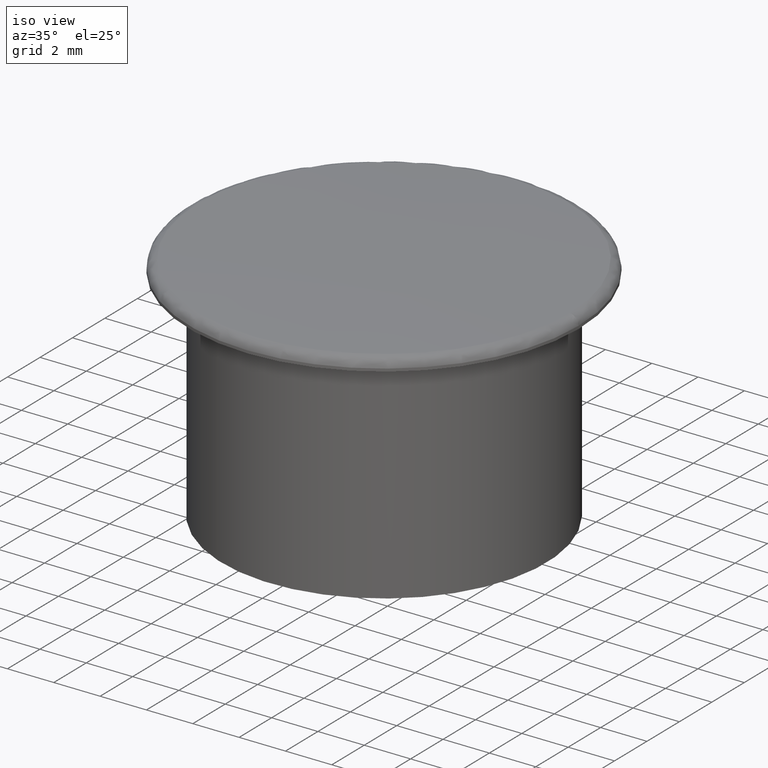
[diagram: clean part render]
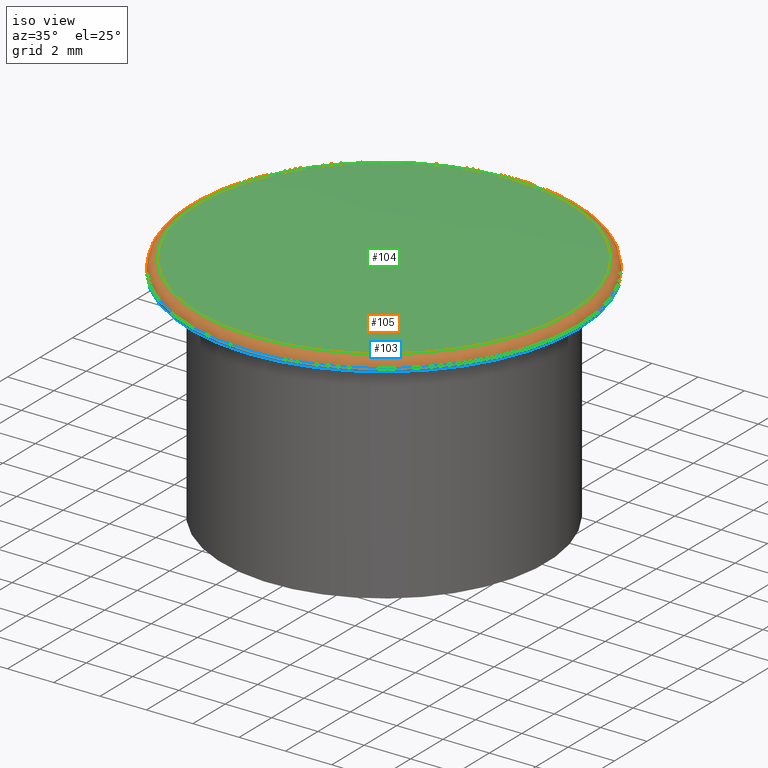
[diagram: same view with three faces highlighted in distinct colors, each labeled with its STEP entity id]
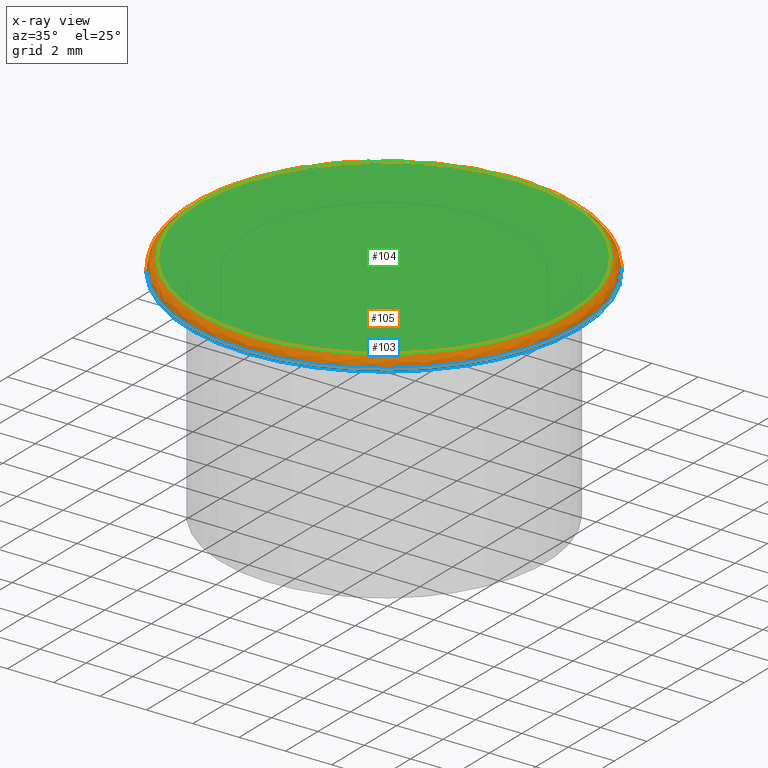
[diagram: x-ray of the same camera — body ghosted, the three highlighted faces saturated]
A machine part, iso view with three faces highlighted in distinct colors.
The next image is the same camera in x-ray (body ghosted, the three faces saturated) — at least one of them is partly hidden behind the body in this view.
Their STEP definitions:

[orange] entity #105 — the highlighted face is a freeform B-spline surface patch.
#15=B_SPLINE_SURFACE_WITH_KNOTS('',3,3,((#187,#188,#189,#190,#191,#192,
#193,#194,#195,#196,#197,#198,#199,#200,#201,#202,#203,#204,#205,#206,#207,
#208,#209,#210,#211,#212,#213,#214,#215,#216,#217,#218,#219),(#220,#221,
#222,#223,#224,#225,#226,#227,#228,#229,#230,#231,#232,#233,#234,#235,#236,
#237,#238,#239,#240,#241,#242,#243,#244,#245,#246,#247,#248,#249,#250,#251,
#252),(#253,#254,#255,#256,#257,#258,#259,#260,#261,#262,#263,#264,#265,
#266,#267,#268,#269,#270,#271,#272,#273,#274,#275,#276,#277,#278,#279,#280,
#281,#282,#283,#284,#285),(#286,#287,#288,#289,#290,#291,#292,#293,#294,
#295,#296,#297,#298,#299,#300,#301,#302,#303,#304,#305,#306,#307,#308,#309,
#310,#311,#312,#313,#314,#315,#316,#317,#318),(#319,#320,#321,#322,#323,
#324,#325,#326,#327,#328,#329,#330,#331,#332,#333,#334,#335,#336,#337,#338,
#339,#340,#341,#342,#343,#344,#345,#346,#347,#348,#349,#350,#351),(#352,
#353,#354,#355,#356,#357,#358,#359,#360,#361,#362,#363,#364,#365,#366,#367,
#368,#369,#370,#371,#372,#373,#374,#375,#376,#377,#378,#379,#380,#381,#382,
#383,#384),(#385,#386,#387,#388,#389,#390,#391,#392,#393,#394,#395,#396,
#397,#398,#399,#400,#401,#402,#403,#404,#405,#406,#407,#408,#409,#410,#411,
#412,#413,#414,#415,#416,#417)),.UNSPECIFIED.,.F.,.T.,.F.,(4,1,1,1,4),(4,
1,1,1,1,1,1,1,1,1,1,1,1,1,1,1,1,1,1,1,1,1,1,1,1,1,1,1,1,1,4),(-0.0192438729312077,
0.150806206425929,0.301612412851857,0.452418619277786,0.603224825703715),
(0.,1.6173286749895,3.234657349979,4.85198602496849,6.46931469995799,8.08664337494749,
9.70397204993699,11.3213007249265,12.938629399916,14.5559580749055,16.173286749895,
17.7906154248845,19.407944099874,21.0252727748635,22.642601449853,25.86168304057,
29.0807646312871,30.6980933062766,32.3154219812661,33.9327506562556,35.5500793312451,
37.1674080062346,38.7847366812241,40.4020653562136,42.0193940312031,43.6367227061926,
45.2540513811821,46.8713800561716,48.4887087311611,50.1060374061506,51.7233660811401),
 .UNSPECIFIED.);
#32=FACE_OUTER_BOUND('',#45,.T.);
#45=EDGE_LOOP('',(#89,#90,#91,#92,#93,#94));
#51=CIRCLE('',#119,8.4);
#52=CIRCLE('',#120,8.4);
#53=CIRCLE('',#122,8.0214524271729);
#54=CIRCLE('',#123,8.0214524271729);
#55=CIRCLE('',#124,0.400000005960465);
#61=VERTEX_POINT('',#178);
#62=VERTEX_POINT('',#179);
#63=VERTEX_POINT('',#183);
#64=VERTEX_POINT('',#184);
#70=EDGE_CURVE('',#61,#62,#51,.T.);
#71=EDGE_CURVE('',#62,#61,#52,.T.);
#72=EDGE_CURVE('',#63,#64,#53,.T.);
#73=EDGE_CURVE('',#64,#63,#54,.T.);
#74=EDGE_CURVE('',#64,#61,#55,.T.);
#89=ORIENTED_EDGE('',*,*,#74,.T.);
#90=ORIENTED_EDGE('',*,*,#71,.F.);
#91=ORIENTED_EDGE('',*,*,#70,.F.);
#92=ORIENTED_EDGE('',*,*,#74,.F.);
#93=ORIENTED_EDGE('',*,*,#73,.T.);
#94=ORIENTED_EDGE('',*,*,#72,.T.);
#105=ADVANCED_FACE('',(#32),#15,.F.);
#119=AXIS2_PLACEMENT_3D('',#180,#149,#150);
#120=AXIS2_PLACEMENT_3D('',#181,#151,#152);
#122=AXIS2_PLACEMENT_3D('',#185,#155,#156);
#123=AXIS2_PLACEMENT_3D('',#186,#157,#158);
#124=AXIS2_PLACEMENT_3D('',#418,#159,#160);
#149=DIRECTION('center_axis',(0.,0.,-1.));
#150=DIRECTION('ref_axis',(1.,0.,0.));
#151=DIRECTION('center_axis',(0.,0.,-1.));
#152=DIRECTION('ref_axis',(1.,0.,0.));
#155=DIRECTION('center_axis',(0.,0.,-1.));
#156=DIRECTION('ref_axis',(1.,0.,0.));
#157=DIRECTION('center_axis',(0.,0.,-1.));
#158=DIRECTION('ref_axis',(1.,0.,0.));
#159=DIRECTION('center_axis',(0.,1.,0.));
#160=DIRECTION('ref_axis',(0.05363108203424,0.,0.998560817897356));
#178=CARTESIAN_POINT('',(8.4,9.5,0.121388026605558));
#179=CARTESIAN_POINT('',(-8.4,9.5,0.121388026605558));
#180=CARTESIAN_POINT('Origin',(0.,9.5,0.121388026605558));
#181=CARTESIAN_POINT('Origin',(0.,9.5,0.121388026605558));
#183=CARTESIAN_POINT('',(-8.0214524271729,9.5,0.520812359716416));
#184=CARTESIAN_POINT('',(8.0214524271729,9.5,0.520812359716416));
#185=CARTESIAN_POINT('Origin',(0.,9.5,0.520812359716416));
#186=CARTESIAN_POINT('Origin',(0.,9.5,0.520812359716416));
#187=CARTESIAN_POINT('Ctrl Pts',(8.00224461927941,9.5,0.521368012232897));
#188=CARTESIAN_POINT('Ctrl Pts',(8.00224461927941,8.97709524413375,0.521368012232897));
#189=CARTESIAN_POINT('Ctrl Pts',(7.89907657996045,7.92838771696934,0.521368012232897));
#190=CARTESIAN_POINT('Ctrl Pts',(7.44076743787049,6.4180372466444,0.521368012232897));
#191=CARTESIAN_POINT('Ctrl Pts',(6.69651377596251,5.02550467126759,0.521368012232897));
#192=CARTESIAN_POINT('Ctrl Pts',(5.69491684513374,3.80509062140778,0.521368012232897));
#193=CARTESIAN_POINT('Ctrl Pts',(4.47446745353869,2.80348423306514,0.521368012232896));
#194=CARTESIAN_POINT('Ctrl Pts',(3.08206678758901,2.05923305947742,0.521368012232897));
#195=CARTESIAN_POINT('Ctrl Pts',(1.57122402129077,1.60092342162028,0.521368012232896));
#196=CARTESIAN_POINT('Ctrl Pts',(5.01020095738367E-9,1.4461708573903,0.521368012232897));
#197=CARTESIAN_POINT('Ctrl Pts',(-1.57122404133157,1.60092543314209,0.521368012232896));
#198=CARTESIAN_POINT('Ctrl Pts',(-3.08206671744624,2.05922501339021,0.521368012232897));
#199=CARTESIAN_POINT('Ctrl Pts',(-4.47446771406896,2.8035144058922,0.521368012232896));
#200=CARTESIAN_POINT('Ctrl Pts',(-5.69491587315541,3.80497797618675,0.521368012232897));
#201=CARTESIAN_POINT('Ctrl Pts',(-6.6965174033456,5.02592507932465,0.521368012232897));
#202=CARTESIAN_POINT('Ctrl Pts',(-7.68644359787111,6.87551875608313,0.521368012232897));
#203=CARTESIAN_POINT('Ctrl Pts',(-8.21243961897854,9.5,0.521368012232897));
#204=CARTESIAN_POINT('Ctrl Pts',(-7.68644359787112,12.1244812439169,0.521368012232897));
#205=CARTESIAN_POINT('Ctrl Pts',(-6.69651740334559,13.9740749206753,0.521368012232897));
#206=CARTESIAN_POINT('Ctrl Pts',(-5.69491587315541,15.1950220238133,0.521368012232897));
#207=CARTESIAN_POINT('Ctrl Pts',(-4.47446771406897,16.1964855941078,0.521368012232897));
#208=CARTESIAN_POINT('Ctrl Pts',(-3.08206671744625,16.9407749866098,0.521368012232895));
#209=CARTESIAN_POINT('Ctrl Pts',(-1.57122404133156,17.3990745668579,0.521368012232895));
#210=CARTESIAN_POINT('Ctrl Pts',(5.01019498336725E-9,17.5538291426097,0.521368012232897));
#211=CARTESIAN_POINT('Ctrl Pts',(1.57122402129077,17.3990765783797,0.521368012232897));
#212=CARTESIAN_POINT('Ctrl Pts',(3.08206678758901,16.9407669405226,0.521368012232896));
#213=CARTESIAN_POINT('Ctrl Pts',(4.47446745353868,16.1965157669349,0.521368012232897));
#214=CARTESIAN_POINT('Ctrl Pts',(5.69491684513375,15.1949093785922,0.521368012232897));
#215=CARTESIAN_POINT('Ctrl Pts',(6.6965137759625,13.9744953287324,0.521368012232897));
#216=CARTESIAN_POINT('Ctrl Pts',(7.44076743787048,12.5819627533556,0.521368012232897));
#217=CARTESIAN_POINT('Ctrl Pts',(7.89907657996044,11.0716122830307,0.521368012232897));
#218=CARTESIAN_POINT('Ctrl Pts',(8.00224461927941,10.0229047558663,0.521368012232897));
#219=CARTESIAN_POINT('Ctrl Pts',(8.00224461927941,9.50000000000001,0.521368012232897));
#220=CARTESIAN_POINT('Ctrl Pts',(8.05877137625513,9.5,0.521140134537199));
#221=CARTESIAN_POINT('Ctrl Pts',(8.05877137625513,8.97340151675317,0.521140134537199));
#222=CARTESIAN_POINT('Ctrl Pts',(7.95487457207535,7.91728606364461,0.521140134537199));
#223=CARTESIAN_POINT('Ctrl Pts',(7.49332799714907,6.39626668502629,0.521140134537199));
#224=CARTESIAN_POINT('Ctrl Pts',(6.74381702958793,4.9938974507851,0.521140134537199));
#225=CARTESIAN_POINT('Ctrl Pts',(5.73514495559744,3.76486256368671,0.521140134537199));
#226=CARTESIAN_POINT('Ctrl Pts',(4.50607447711463,2.75618096537576,0.5211401345372));
#227=CARTESIAN_POINT('Ctrl Pts',(3.10383808409065,2.00667250371203,0.521140134537199));
#228=CARTESIAN_POINT('Ctrl Pts',(1.5823229319879,1.54512542951654,0.5211401345372));
#229=CARTESIAN_POINT('Ctrl Pts',(5.04559251821049E-9,1.3892797144263,0.5211401345372));
#230=CARTESIAN_POINT('Ctrl Pts',(-1.58232295217025,1.54512745524746,0.5211401345372));
#231=CARTESIAN_POINT('Ctrl Pts',(-3.1038380134524,2.00666440078836,0.521140134537199));
#232=CARTESIAN_POINT('Ctrl Pts',(-4.50607473948525,2.75621135133952,0.5211401345372));
#233=CARTESIAN_POINT('Ctrl Pts',(-5.73514397675318,3.76474912275531,0.521140134537199));
#234=CARTESIAN_POINT('Ctrl Pts',(-6.74382068259436,4.99432082854694,0.521140134537199));
#235=CARTESIAN_POINT('Ctrl Pts',(-7.7407395798032,6.85697978101796,0.521140134537199));
#236=CARTESIAN_POINT('Ctrl Pts',(-8.27045116456431,9.5,0.521140134537199));
#237=CARTESIAN_POINT('Ctrl Pts',(-7.7407395798032,12.143020218982,0.521140134537199));
#238=CARTESIAN_POINT('Ctrl Pts',(-6.74382068259435,14.005679171453,0.521140134537199));
#239=CARTESIAN_POINT('Ctrl Pts',(-5.73514397675318,15.2352508772447,0.521140134537199));
#240=CARTESIAN_POINT('Ctrl Pts',(-4.50607473948525,16.2437886486605,0.521140134537198));
#241=CARTESIAN_POINT('Ctrl Pts',(-3.10383801345241,16.9933355992116,0.521140134537199));
#242=CARTESIAN_POINT('Ctrl Pts',(-1.58232295217025,17.4548725447525,0.521140134537199));
#243=CARTESIAN_POINT('Ctrl Pts',(5.04558638653299E-9,17.6107202855737,0.521140134537199));
#244=CARTESIAN_POINT('Ctrl Pts',(1.5823229319879,17.4548745704835,0.521140134537199));
#245=CARTESIAN_POINT('Ctrl Pts',(3.10383808409065,16.993327496288,0.521140134537198));
#246=CARTESIAN_POINT('Ctrl Pts',(4.50607447711462,16.2438190346242,0.521140134537199));
#247=CARTESIAN_POINT('Ctrl Pts',(5.73514495559744,15.2351374363133,0.521140134537199));
#248=CARTESIAN_POINT('Ctrl Pts',(6.74381702958792,14.0061025492149,0.521140134537199));
#249=CARTESIAN_POINT('Ctrl Pts',(7.49332799714908,12.6037333149737,0.521140134537199));
#250=CARTESIAN_POINT('Ctrl Pts',(7.95487457207535,11.0827139363554,0.521140134537199));
#251=CARTESIAN_POINT('Ctrl Pts',(8.05877137625513,10.0265984832468,0.521140134537199));
#252=CARTESIAN_POINT('Ctrl Pts',(8.05877137625513,9.5,0.521140134537199));
#253=CARTESIAN_POINT('Ctrl Pts',(8.16669667586103,9.5,0.497128904439829));
#254=CARTESIAN_POINT('Ctrl Pts',(8.16669667586103,8.96634916392878,0.497128904439829));
#255=CARTESIAN_POINT('Ctrl Pts',(8.06140845688665,7.8960899199899,0.497128904439829));
#256=CARTESIAN_POINT('Ctrl Pts',(7.59368072232011,6.35470062833156,0.497128904439828));
#257=CARTESIAN_POINT('Ctrl Pts',(6.83413209616869,4.93355047666547,0.497128904439829));
#258=CARTESIAN_POINT('Ctrl Pts',(5.81195160622905,3.68805601375543,0.497128904439829));
#259=CARTESIAN_POINT('Ctrl Pts',(4.56642107528492,2.665865871943,0.497128904439829));
#260=CARTESIAN_POINT('Ctrl Pts',(3.14540554388243,1.90631978524866,0.497128904439829));
#261=CARTESIAN_POINT('Ctrl Pts',(1.60351383920376,1.43859154472656,0.497128904439829));
#262=CARTESIAN_POINT('Ctrl Pts',(5.11316383121349E-9,1.28065870063016,0.497128904439829));
#263=CARTESIAN_POINT('Ctrl Pts',(-1.60351385965641,1.43859359758663,0.497128904439829));
#264=CARTESIAN_POINT('Ctrl Pts',(-3.14540547229818,1.90631157380839,0.497128904439829));
#265=CARTESIAN_POINT('Ctrl Pts',(-4.56642134116928,2.66589666484401,0.497128904439829));
#266=CARTESIAN_POINT('Ctrl Pts',(-5.81195061427584,3.68794105359164,0.497128904439829));
#267=CARTESIAN_POINT('Ctrl Pts',(-6.8341357980972,4.93397952441963,0.497128904439829));
#268=CARTESIAN_POINT('Ctrl Pts',(-7.84440570945455,6.82158372178261,0.497128904439829));
#269=CARTESIAN_POINT('Ctrl Pts',(-8.38121133855827,9.50000000000001,0.497128904439829));
#270=CARTESIAN_POINT('Ctrl Pts',(-7.84440570945455,12.1784162782174,0.497128904439828));
#271=CARTESIAN_POINT('Ctrl Pts',(-6.83413579809719,14.0660204755804,0.497128904439829));
#272=CARTESIAN_POINT('Ctrl Pts',(-5.81195061427584,15.3120589464084,0.497128904439829));
#273=CARTESIAN_POINT('Ctrl Pts',(-4.56642134116928,16.334103335156,0.497128904439827));
#274=CARTESIAN_POINT('Ctrl Pts',(-3.14540547229819,17.0936884261916,0.497128904439829));
#275=CARTESIAN_POINT('Ctrl Pts',(-1.6035138596564,17.5614064024134,0.497128904439828));
#276=CARTESIAN_POINT('Ctrl Pts',(5.11315883121349E-9,17.7193412993698,0.497128904439829));
#277=CARTESIAN_POINT('Ctrl Pts',(1.60351383920376,17.5614084552734,0.497128904439828));
#278=CARTESIAN_POINT('Ctrl Pts',(3.14540554388243,17.0936802147513,0.497128904439827));
#279=CARTESIAN_POINT('Ctrl Pts',(4.56642107528491,16.334134128057,0.497128904439829));
#280=CARTESIAN_POINT('Ctrl Pts',(5.81195160622905,15.3119439862446,0.497128904439829));
#281=CARTESIAN_POINT('Ctrl Pts',(6.83413209616869,14.0664495233345,0.497128904439828));
#282=CARTESIAN_POINT('Ctrl Pts',(7.59368072232012,12.6452993716684,0.497128904439828));
#283=CARTESIAN_POINT('Ctrl Pts',(8.06140845688665,11.1039100800101,0.497128904439828));
#284=CARTESIAN_POINT('Ctrl Pts',(8.16669667586103,10.0336508360712,0.497128904439829));
#285=CARTESIAN_POINT('Ctrl Pts',(8.16669667586103,9.50000000000001,0.497128904439829));
#286=CARTESIAN_POINT('Ctrl Pts',(8.29733600956711,9.5,0.403183144382767));
#287=CARTESIAN_POINT('Ctrl Pts',(8.29733600956711,8.95781256799249,0.403183144382767));
#288=CARTESIAN_POINT('Ctrl Pts',(8.19036353766651,7.87043282110482,0.403183144382767));
#289=CARTESIAN_POINT('Ctrl Pts',(7.71515375227516,6.30438655024959,0.403183144382767));
#290=CARTESIAN_POINT('Ctrl Pts',(6.94345493488042,4.86050283613118,0.403183144382768));
#291=CARTESIAN_POINT('Ctrl Pts',(5.90492303831542,3.59508470356286,0.403183144382767));
#292=CARTESIAN_POINT('Ctrl Pts',(4.63946826074729,2.55654300072797,0.403183144382768));
#293=CARTESIAN_POINT('Ctrl Pts',(3.19572132035823,1.78484676341299,0.403183144382767));
#294=CARTESIAN_POINT('Ctrl Pts',(1.6291645995854,1.30963646397251,0.403183144382768));
#295=CARTESIAN_POINT('Ctrl Pts',(5.194957E-9,1.14917723223837,0.403183144382768));
#296=CARTESIAN_POINT('Ctrl Pts',(-1.62916462036522,1.30963854967135,0.403183144382768));
#297=CARTESIAN_POINT('Ctrl Pts',(-3.19572124762887,1.78483842061764,0.403183144382767));
#298=CARTESIAN_POINT('Ctrl Pts',(-4.6394685308849,2.55657428621052,0.403183144382768));
#299=CARTESIAN_POINT('Ctrl Pts',(-5.90492203049433,3.59496790442797,0.403183144382767));
#300=CARTESIAN_POINT('Ctrl Pts',(-6.94345869602718,4.86093874718821,0.403183144382768));
#301=CARTESIAN_POINT('Ctrl Pts',(-7.96988948531614,6.77873818314418,0.403183144382767));
#302=CARTESIAN_POINT('Ctrl Pts',(-8.51528217630046,9.5,0.403183144382768));
#303=CARTESIAN_POINT('Ctrl Pts',(-7.96988948531614,12.2212618168558,0.403183144382766));
#304=CARTESIAN_POINT('Ctrl Pts',(-6.94345869602718,14.1390612528118,0.403183144382767));
#305=CARTESIAN_POINT('Ctrl Pts',(-5.90492203049433,15.405032095572,0.403183144382767));
#306=CARTESIAN_POINT('Ctrl Pts',(-4.63946853088491,16.4434257137895,0.403183144382765));
#307=CARTESIAN_POINT('Ctrl Pts',(-3.19572124762887,17.2151615793823,0.403183144382768));
#308=CARTESIAN_POINT('Ctrl Pts',(-1.62916462036522,17.6903614503286,0.403183144382766));
#309=CARTESIAN_POINT('Ctrl Pts',(5.194952E-9,17.8508227677616,0.403183144382767));
#310=CARTESIAN_POINT('Ctrl Pts',(1.6291645995854,17.6903635360275,0.403183144382767));
#311=CARTESIAN_POINT('Ctrl Pts',(3.19572132035823,17.215153236587,0.403183144382765));
#312=CARTESIAN_POINT('Ctrl Pts',(4.63946826074729,16.443456999272,0.403183144382768));
#313=CARTESIAN_POINT('Ctrl Pts',(5.90492303831542,15.4049152964371,0.403183144382767));
#314=CARTESIAN_POINT('Ctrl Pts',(6.94345493488042,14.1394971638688,0.403183144382766));
#315=CARTESIAN_POINT('Ctrl Pts',(7.71515375227515,12.6956134497504,0.403183144382767));
#316=CARTESIAN_POINT('Ctrl Pts',(8.19036353766651,11.1295671788952,0.403183144382767));
#317=CARTESIAN_POINT('Ctrl Pts',(8.29733600956711,10.0421874320075,0.403183144382767));
#318=CARTESIAN_POINT('Ctrl Pts',(8.29733600956711,9.5,0.403183144382767));
#319=CARTESIAN_POINT('Ctrl Pts',(8.38059861535722,9.5,0.273221405220312));
#320=CARTESIAN_POINT('Ctrl Pts',(8.38059861535722,8.95237179298187,0.273221405220312));
#321=CARTESIAN_POINT('Ctrl Pts',(8.27255268967,7.85408034249381,0.273221405220313));
#322=CARTESIAN_POINT('Ctrl Pts',(7.79257424057948,6.27231901645112,0.273221405220312));
#323=CARTESIAN_POINT('Ctrl Pts',(7.01313153353784,4.81394613130759,0.273221405220313));
#324=CARTESIAN_POINT('Ctrl Pts',(5.96417811471504,3.53582970485192,0.273221405220312));
#325=CARTESIAN_POINT('Ctrl Pts',(4.6860246755321,2.48686638135467,0.273221405220313));
#326=CARTESIAN_POINT('Ctrl Pts',(3.22778993662316,1.70742628028352,0.273221405220313));
#327=CARTESIAN_POINT('Ctrl Pts',(1.64551303836938,1.22744731198546,0.273221405220313));
#328=CARTESIAN_POINT('Ctrl Pts',(5.247088E-9,1.06537789431431,0.273221405220313));
#329=CARTESIAN_POINT('Ctrl Pts',(-1.64551305935772,1.227449418614,0.273221405220313));
#330=CARTESIAN_POINT('Ctrl Pts',(-3.22778986316397,1.70741785376939,0.273221405220313));
#331=CARTESIAN_POINT('Ctrl Pts',(-4.6860249483805,2.48689798078267,0.273221405220313));
#332=CARTESIAN_POINT('Ctrl Pts',(-5.9641770967806,3.53571173365404,0.273221405220312));
#333=CARTESIAN_POINT('Ctrl Pts',(-7.01313533242718,4.81438641667108,0.273221405220313));
#334=CARTESIAN_POINT('Ctrl Pts',(-8.04986621105576,6.75143070160466,0.273221405220312));
#335=CARTESIAN_POINT('Ctrl Pts',(-8.60073184137602,9.5,0.273221405220312));
#336=CARTESIAN_POINT('Ctrl Pts',(-8.04986621105577,12.2485692983953,0.273221405220312));
#337=CARTESIAN_POINT('Ctrl Pts',(-7.01313533242717,14.1856135833289,0.273221405220312));
#338=CARTESIAN_POINT('Ctrl Pts',(-5.96417709678061,15.464288266346,0.273221405220312));
#339=CARTESIAN_POINT('Ctrl Pts',(-4.68602494838051,16.5131020192173,0.273221405220311));
#340=CARTESIAN_POINT('Ctrl Pts',(-3.22778986316398,17.2925821462306,0.273221405220313));
#341=CARTESIAN_POINT('Ctrl Pts',(-1.64551305935772,17.772550581386,0.273221405220311));
#342=CARTESIAN_POINT('Ctrl Pts',(5.247082E-9,17.9346221056857,0.273221405220312));
#343=CARTESIAN_POINT('Ctrl Pts',(1.64551303836938,17.7725526880145,0.273221405220312));
#344=CARTESIAN_POINT('Ctrl Pts',(3.22778993662316,17.2925737197165,0.273221405220311));
#345=CARTESIAN_POINT('Ctrl Pts',(4.6860246755321,16.5131336186453,0.273221405220313));
#346=CARTESIAN_POINT('Ctrl Pts',(5.96417811471503,15.4641702951481,0.273221405220312));
#347=CARTESIAN_POINT('Ctrl Pts',(7.01313153353784,14.1860538686924,0.273221405220311));
#348=CARTESIAN_POINT('Ctrl Pts',(7.79257424057949,12.7276809835489,0.273221405220312));
#349=CARTESIAN_POINT('Ctrl Pts',(8.27255268967,11.1459196575062,0.273221405220312));
#350=CARTESIAN_POINT('Ctrl Pts',(8.38059861535722,10.0476282070181,0.273221405220312));
#351=CARTESIAN_POINT('Ctrl Pts',(8.38059861535722,9.5,0.273221405220312));
#352=CARTESIAN_POINT('Ctrl Pts',(8.4,9.5,0.171656762080868));
#353=CARTESIAN_POINT('Ctrl Pts',(8.4,8.95110401415446,0.171656762080868));
#354=CARTESIAN_POINT('Ctrl Pts',(8.29170394414196,7.85026997979395,0.171656762080868));
#355=CARTESIAN_POINT('Ctrl Pts',(7.81061432782598,6.26484681987661,0.171656762080868));
#356=CARTESIAN_POINT('Ctrl Pts',(7.02936718312297,4.80309774949908,0.171656762080868));
#357=CARTESIAN_POINT('Ctrl Pts',(5.9779853997304,3.52202243793912,0.171656762080868));
#358=CARTESIAN_POINT('Ctrl Pts',(4.69687298975741,2.47063072694244,0.171656762080868));
#359=CARTESIAN_POINT('Ctrl Pts',(3.23526238542793,1.68938619424284,0.171656762080868));
#360=CARTESIAN_POINT('Ctrl Pts',(1.64932245973143,1.20829605751734,0.171656762080868));
#361=CARTESIAN_POINT('Ctrl Pts',(5.259235E-9,1.04585144336496,0.171656762080868));
#362=CARTESIAN_POINT('Ctrl Pts',(-1.64932248076836,1.2082981690228,0.171656762080868));
#363=CARTESIAN_POINT('Ctrl Pts',(-3.23526231179868,1.68937774822103,0.171656762080868));
#364=CARTESIAN_POINT('Ctrl Pts',(-4.69687326323746,2.47066239952424,0.171656762080868));
#365=CARTESIAN_POINT('Ctrl Pts',(-5.97798437943942,3.52190419363372,0.171656762080868));
#366=CARTESIAN_POINT('Ctrl Pts',(-7.02937099080687,4.80353905413888,0.171656762080868));
#367=CARTESIAN_POINT('Ctrl Pts',(-8.06850193838882,6.74506766566617,0.171656762080868));
#368=CARTESIAN_POINT('Ctrl Pts',(-8.62064284228689,9.5,0.171656762080868));
#369=CARTESIAN_POINT('Ctrl Pts',(-8.06850193838882,12.2549323343338,0.171656762080867));
#370=CARTESIAN_POINT('Ctrl Pts',(-7.02937099080687,14.1964609458611,0.171656762080868));
#371=CARTESIAN_POINT('Ctrl Pts',(-5.97798437943942,15.4780958063663,0.171656762080867));
#372=CARTESIAN_POINT('Ctrl Pts',(-4.69687326323747,16.5293376004758,0.171656762080867));
#373=CARTESIAN_POINT('Ctrl Pts',(-3.23526231179868,17.310622251779,0.171656762080868));
#374=CARTESIAN_POINT('Ctrl Pts',(-1.64932248076835,17.7917018309772,0.171656762080867));
#375=CARTESIAN_POINT('Ctrl Pts',(5.25923E-9,17.954148556635,0.171656762080867));
#376=CARTESIAN_POINT('Ctrl Pts',(1.64932245973143,17.7917039424827,0.171656762080867));
#377=CARTESIAN_POINT('Ctrl Pts',(3.23526238542792,17.3106138057572,0.171656762080867));
#378=CARTESIAN_POINT('Ctrl Pts',(4.6968729897574,16.5293692730576,0.171656762080868));
#379=CARTESIAN_POINT('Ctrl Pts',(5.97798539973041,15.4779775620609,0.171656762080867));
#380=CARTESIAN_POINT('Ctrl Pts',(7.02936718312297,14.1969022505009,0.171656762080867));
#381=CARTESIAN_POINT('Ctrl Pts',(7.81061432782599,12.7351531801234,0.171656762080868));
#382=CARTESIAN_POINT('Ctrl Pts',(8.29170394414195,11.1497300202061,0.171656762080868));
#383=CARTESIAN_POINT('Ctrl Pts',(8.4,10.0488959858455,0.171656762080868));
#384=CARTESIAN_POINT('Ctrl Pts',(8.4,9.5,0.171656762080868));
#385=CARTESIAN_POINT('Ctrl Pts',(8.4,9.5,0.121388026605558));
#386=CARTESIAN_POINT('Ctrl Pts',(8.4,8.95110401415446,0.121388026605558));
#387=CARTESIAN_POINT('Ctrl Pts',(8.29170394414195,7.85026997979395,0.121388026605558));
#388=CARTESIAN_POINT('Ctrl Pts',(7.81061432782598,6.26484681987661,0.121388026605558));
#389=CARTESIAN_POINT('Ctrl Pts',(7.02936718312297,4.80309774949908,0.121388026605559));
#390=CARTESIAN_POINT('Ctrl Pts',(5.9779853997304,3.52202243793912,0.121388026605559));
#391=CARTESIAN_POINT('Ctrl Pts',(4.69687298975741,2.47063072694244,0.121388026605559));
#392=CARTESIAN_POINT('Ctrl Pts',(3.23526238542792,1.68938619424284,0.121388026605559));
#393=CARTESIAN_POINT('Ctrl Pts',(1.64932245973143,1.20829605751735,0.121388026605559));
#394=CARTESIAN_POINT('Ctrl Pts',(5.259235E-9,1.04585144336497,0.121388026605559));
#395=CARTESIAN_POINT('Ctrl Pts',(-1.64932248076836,1.2082981690228,0.121388026605559));
#396=CARTESIAN_POINT('Ctrl Pts',(-3.23526231179868,1.68937774822103,0.121388026605559));
#397=CARTESIAN_POINT('Ctrl Pts',(-4.69687326323746,2.47066239952424,0.121388026605559));
#398=CARTESIAN_POINT('Ctrl Pts',(-5.97798437943942,3.52190419363372,0.121388026605559));
#399=CARTESIAN_POINT('Ctrl Pts',(-7.02937099080687,4.80353905413889,0.121388026605559));
#400=CARTESIAN_POINT('Ctrl Pts',(-8.06850193838881,6.74506766566617,0.121388026605558));
#401=CARTESIAN_POINT('Ctrl Pts',(-8.62064284228688,9.5,0.121388026605558));
#402=CARTESIAN_POINT('Ctrl Pts',(-8.06850193838882,12.2549323343338,0.121388026605558));
#403=CARTESIAN_POINT('Ctrl Pts',(-7.02937099080687,14.1964609458611,0.121388026605558));
#404=CARTESIAN_POINT('Ctrl Pts',(-5.97798437943942,15.4780958063663,0.121388026605558));
#405=CARTESIAN_POINT('Ctrl Pts',(-4.69687326323747,16.5293376004757,0.121388026605558));
#406=CARTESIAN_POINT('Ctrl Pts',(-3.23526231179868,17.310622251779,0.121388026605558));
#407=CARTESIAN_POINT('Ctrl Pts',(-1.64932248076835,17.7917018309772,0.121388026605558));
#408=CARTESIAN_POINT('Ctrl Pts',(5.259229E-9,17.954148556635,0.121388026605558));
#409=CARTESIAN_POINT('Ctrl Pts',(1.64932245973143,17.7917039424827,0.121388026605558));
#410=CARTESIAN_POINT('Ctrl Pts',(3.23526238542792,17.3106138057572,0.121388026605558));
#411=CARTESIAN_POINT('Ctrl Pts',(4.6968729897574,16.5293692730576,0.121388026605558));
#412=CARTESIAN_POINT('Ctrl Pts',(5.9779853997304,15.4779775620609,0.121388026605558));
#413=CARTESIAN_POINT('Ctrl Pts',(7.02936718312297,14.1969022505009,0.121388026605558));
#414=CARTESIAN_POINT('Ctrl Pts',(7.81061432782598,12.7351531801234,0.121388026605558));
#415=CARTESIAN_POINT('Ctrl Pts',(8.29170394414195,11.1497300202061,0.121388026605558));
#416=CARTESIAN_POINT('Ctrl Pts',(8.4,10.0488959858455,0.121388026605558));
#417=CARTESIAN_POINT('Ctrl Pts',(8.4,9.5,0.121388026605558));
#418=CARTESIAN_POINT('Origin',(7.99999999403953,9.5,0.121388026605587));

[blue] entity #103 — the highlighted cylindrical surface (bore or boss wall) has radius 8.4 mm, axis along (0, 0, -1).
#21=FACE_BOUND('',#43,.T.);
#24=CYLINDRICAL_SURFACE('',#118,8.4);
#30=FACE_OUTER_BOUND('',#42,.T.);
#42=EDGE_LOOP('',(#84,#85));
#43=EDGE_LOOP('',(#86));
#50=CIRCLE('',#117,8.4);
#51=CIRCLE('',#119,8.4);
#52=CIRCLE('',#120,8.4);
#60=VERTEX_POINT('',#175);
#61=VERTEX_POINT('',#178);
#62=VERTEX_POINT('',#179);
#69=EDGE_CURVE('',#60,#60,#50,.T.);
#70=EDGE_CURVE('',#61,#62,#51,.T.);
#71=EDGE_CURVE('',#62,#61,#52,.T.);
#84=ORIENTED_EDGE('',*,*,#70,.T.);
#85=ORIENTED_EDGE('',*,*,#71,.T.);
#86=ORIENTED_EDGE('',*,*,#69,.F.);
#103=ADVANCED_FACE('',(#30,#21),#24,.T.);
#117=AXIS2_PLACEMENT_3D('',#176,#145,#146);
#118=AXIS2_PLACEMENT_3D('',#177,#147,#148);
#119=AXIS2_PLACEMENT_3D('',#180,#149,#150);
#120=AXIS2_PLACEMENT_3D('',#181,#151,#152);
#145=DIRECTION('center_axis',(0.,0.,-1.));
#146=DIRECTION('ref_axis',(1.,0.,0.));
#147=DIRECTION('center_axis',(0.,0.,-1.));
#148=DIRECTION('ref_axis',(1.,0.,0.));
#149=DIRECTION('center_axis',(0.,0.,-1.));
#150=DIRECTION('ref_axis',(1.,0.,0.));
#151=DIRECTION('center_axis',(0.,0.,-1.));
#152=DIRECTION('ref_axis',(1.,0.,0.));
#175=CARTESIAN_POINT('',(-8.4,9.5,0.));
#176=CARTESIAN_POINT('Origin',(0.,9.5,0.));
#177=CARTESIAN_POINT('Origin',(0.,9.5,0.));
#178=CARTESIAN_POINT('',(8.4,9.5,0.121388026605558));
#179=CARTESIAN_POINT('',(-8.4,9.5,0.121388026605558));
#180=CARTESIAN_POINT('Origin',(0.,9.5,0.121388026605558));
#181=CARTESIAN_POINT('Origin',(0.,9.5,0.121388026605558));

[green] entity #104 — the highlighted spherical surface has radius 149.567 mm.
#16=SPHERICAL_SURFACE('',#121,149.567230846708);
#31=FACE_OUTER_BOUND('',#44,.T.);
#44=EDGE_LOOP('',(#87,#88));
#53=CIRCLE('',#122,8.0214524271729);
#54=CIRCLE('',#123,8.0214524271729);
#63=VERTEX_POINT('',#183);
#64=VERTEX_POINT('',#184);
#72=EDGE_CURVE('',#63,#64,#53,.T.);
#73=EDGE_CURVE('',#64,#63,#54,.T.);
#87=ORIENTED_EDGE('',*,*,#72,.F.);
#88=ORIENTED_EDGE('',*,*,#73,.F.);
#104=ADVANCED_FACE('',(#31),#16,.T.);
#121=AXIS2_PLACEMENT_3D('',#182,#153,#154);
#122=AXIS2_PLACEMENT_3D('',#185,#155,#156);
#123=AXIS2_PLACEMENT_3D('',#186,#157,#158);
#153=DIRECTION('center_axis',(1.,-5.93832228270924E-17,0.));
#154=DIRECTION('ref_axis',(0.,-1.,0.));
#155=DIRECTION('center_axis',(0.,0.,-1.));
#156=DIRECTION('ref_axis',(1.,0.,0.));
#157=DIRECTION('center_axis',(0.,0.,-1.));
#158=DIRECTION('ref_axis',(1.,0.,0.));
#182=CARTESIAN_POINT('Origin',(1.41553435639707E-14,9.49999999999998,-148.831164005215));
#183=CARTESIAN_POINT('',(-8.0214524271729,9.5,0.520812359716416));
#184=CARTESIAN_POINT('',(8.0214524271729,9.5,0.520812359716416));
#185=CARTESIAN_POINT('Origin',(0.,9.5,0.520812359716416));
#186=CARTESIAN_POINT('Origin',(0.,9.5,0.520812359716416));